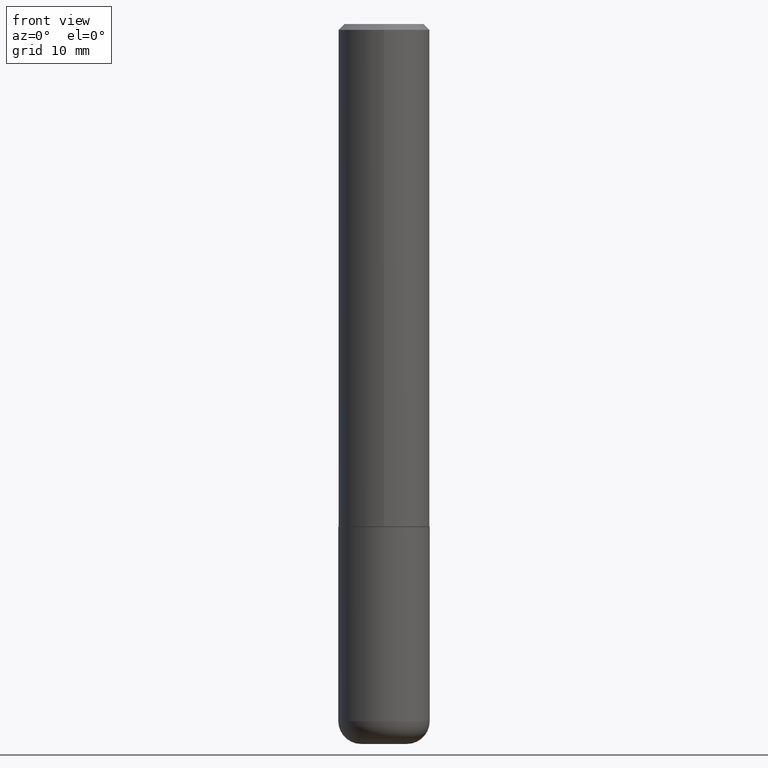
[diagram: clean part render]
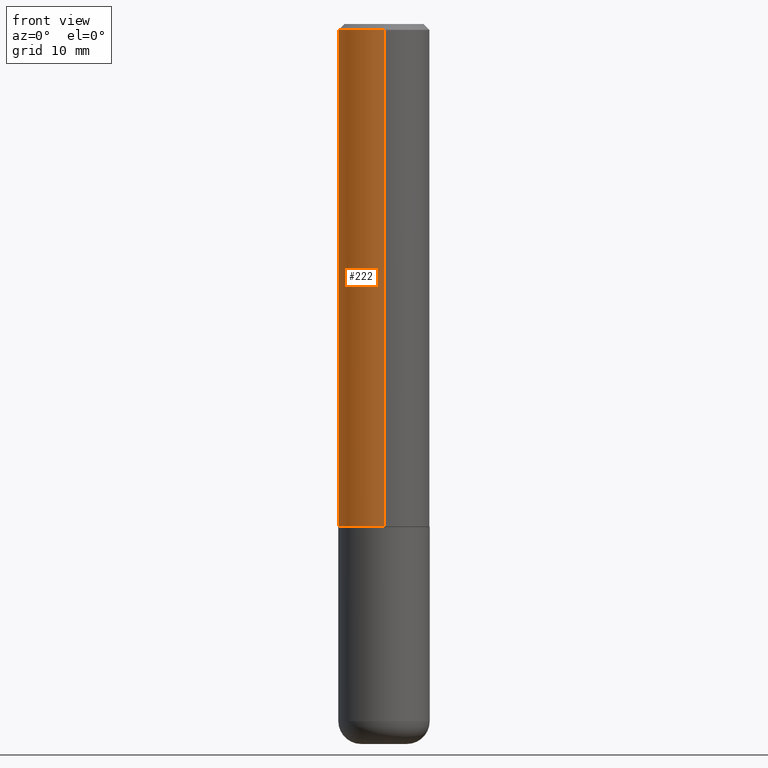
[diagram: same view with one face highlighted and labeled with its STEP entity id]
A machine part, front view. The second image highlights one B-rep face of the part: STEP entity #222.
In plain terms, the highlighted cylindrical surface (partial cylindrical patch) has radius 4.0005 mm, axis along (-0, 0, 1).
Its self-contained STEP definition (entity closure, byte-faithful):
#2 = EDGE_LOOP ( 'NONE', ( #159, #112, #60, #26 ) ) ;
#5 = DIRECTION ( 'NONE',  ( -2.446510153727324005E-29, 3.489990069892911860E-15, 1.000000000000000000 ) ) ;
#22 = DIRECTION ( 'NONE',  ( -6.982962677686265922E-15, -1.000000000000000000, 3.496114991891766760E-15 ) ) ;
#26 = ORIENTED_EDGE ( 'NONE', *, *, #85, .F. ) ;
#31 = LINE ( 'NONE', #198, #188 ) ;
#60 = ORIENTED_EDGE ( 'NONE', *, *, #358, .T. ) ;
#68 = VERTEX_POINT ( 'NONE', #245 ) ;
#82 = CARTESIAN_POINT ( 'NONE',  ( 1.099816621735586889E-15, 0.1574999999999998901, -0.02000000000000058328 ) ) ;
#85 = EDGE_CURVE ( 'NONE', #360, #68, #126, .T. ) ;
#90 = DIRECTION ( 'NONE',  ( -2.446510153727324005E-29, 3.489990069892911860E-15, 1.000000000000000000 ) ) ;
#110 = CARTESIAN_POINT ( 'NONE',  ( -1.099816621735587480E-15, -0.1575000000000000844, 5.496734360081339532E-16 ) ) ;
#112 = ORIENTED_EDGE ( 'NONE', *, *, #341, .T. ) ;
#126 = CIRCLE ( 'NONE', #405, 0.1574999999999999456 ) ;
#142 = CARTESIAN_POINT ( 'NONE',  ( 4.893020307454656557E-31, -6.979980139785835060E-17, -0.02000000000000003511 ) ) ;
#156 = AXIS2_PLACEMENT_3D ( 'NONE', #201, #402, #170 ) ;
#159 = ORIENTED_EDGE ( 'NONE', *, *, #388, .F. ) ;
#162 = VECTOR ( 'NONE', #233, 39.37007874015748143 ) ;
#170 = DIRECTION ( 'NONE',  ( -6.982962677686265922E-15, -1.000000000000000000, 3.489990069892912254E-15 ) ) ;
#188 = VECTOR ( 'NONE', #261, 39.37007874015748143 ) ;
#198 = CARTESIAN_POINT ( 'NONE',  ( 1.119104808822158195E-15, 0.1575000000000000844, -5.496734360081339532E-16 ) ) ;
#201 = CARTESIAN_POINT ( 'NONE',  ( 0.000000000000000000, 0.000000000000000000, 0.000000000000000000 ) ) ;
#222 = ADVANCED_FACE ( 'NONE', ( #300 ), #328, .T. ) ;
#233 = DIRECTION ( 'NONE',  ( -2.446510153727324285E-29, 3.489990069892911860E-15, 1.000000000000000000 ) ) ;
#245 = CARTESIAN_POINT ( 'NONE',  ( -1.080528434649015385E-15, -0.1575000000000000289, -0.01999999999999948347 ) ) ;
#254 = VERTEX_POINT ( 'NONE', #396 ) ;
#255 = CARTESIAN_POINT ( 'NONE',  ( 4.235643029148117026E-29, -6.042219808005598538E-15, -1.731300000000000283 ) ) ;
#261 = DIRECTION ( 'NONE',  ( -2.446510153727324285E-29, 3.489990069892911860E-15, 1.000000000000000000 ) ) ;
#280 = CIRCLE ( 'NONE', #366, 0.1575000000000001954 ) ;
#300 = FACE_OUTER_BOUND ( 'NONE', #2, .T. ) ;
#325 = DIRECTION ( 'NONE',  ( -6.982962677686265922E-15, -1.000000000000000000, 3.469013325287948955E-15 ) ) ;
#328 = CYLINDRICAL_SURFACE ( 'NONE', #156, 0.1575000000000000844 ) ;
#338 = VERTEX_POINT ( 'NONE', #386 ) ;
#341 = EDGE_CURVE ( 'NONE', #338, #254, #280, .T. ) ;
#358 = EDGE_CURVE ( 'NONE', #254, #68, #393, .T. ) ;
#360 = VERTEX_POINT ( 'NONE', #82 ) ;
#366 = AXIS2_PLACEMENT_3D ( 'NONE', #255, #5, #325 ) ;
#386 = CARTESIAN_POINT ( 'NONE',  ( 1.119104808822180283E-15, 0.1574999999999941447, -1.731300000000000727 ) ) ;
#388 = EDGE_CURVE ( 'NONE', #338, #360, #31, .T. ) ;
#393 = LINE ( 'NONE', #110, #162 ) ;
#396 = CARTESIAN_POINT ( 'NONE',  ( -1.099816621735545671E-15, -0.1575000000000062461, -1.731299999999999617 ) ) ;
#402 = DIRECTION ( 'NONE',  ( -2.446510153727324005E-29, 3.489990069892911860E-15, 1.000000000000000000 ) ) ;
#405 = AXIS2_PLACEMENT_3D ( 'NONE', #142, #90, #22 ) ;